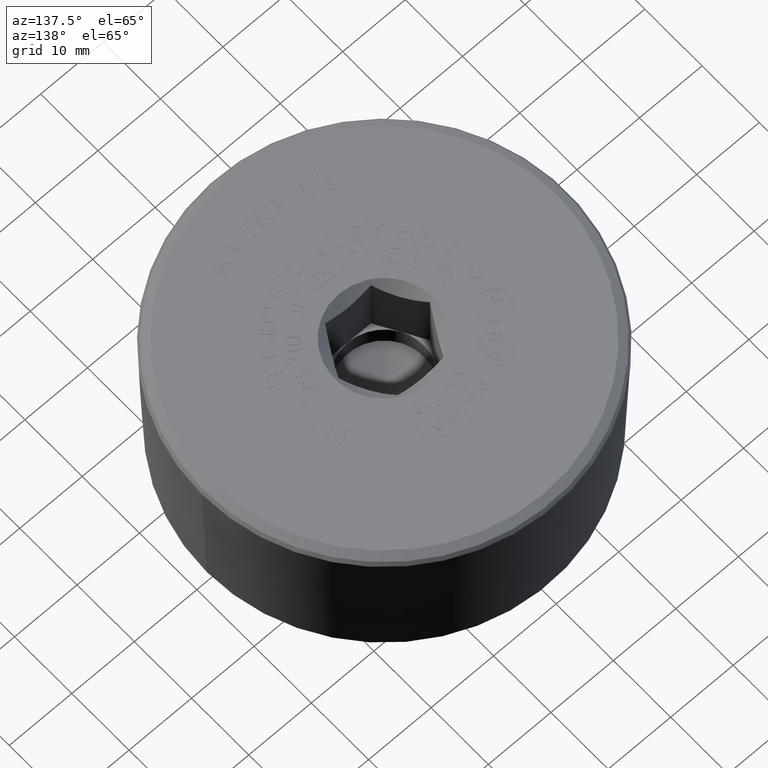
[diagram: clean part render]
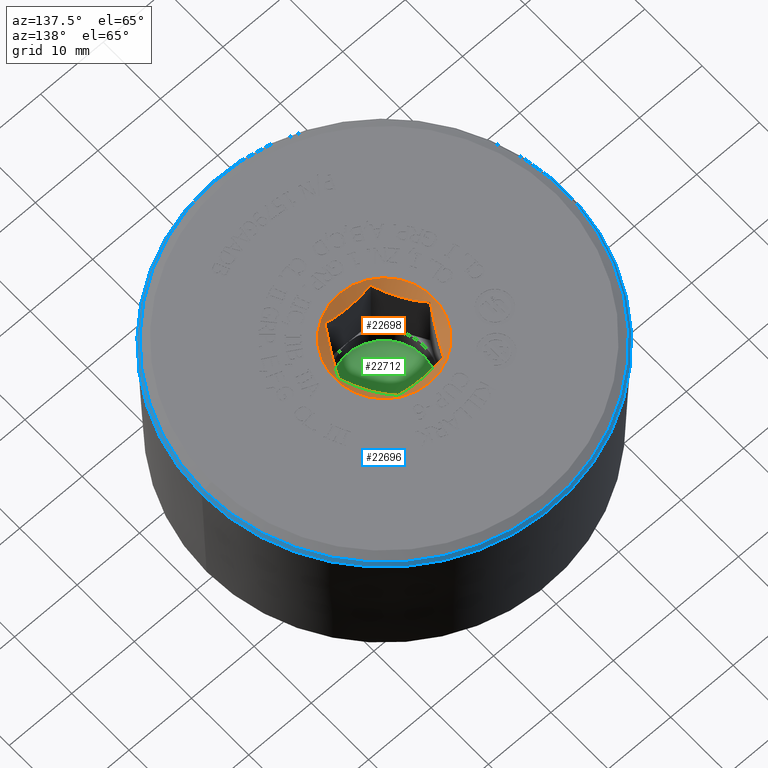
[diagram: same view with three faces highlighted in distinct colors, each labeled with its STEP entity id]
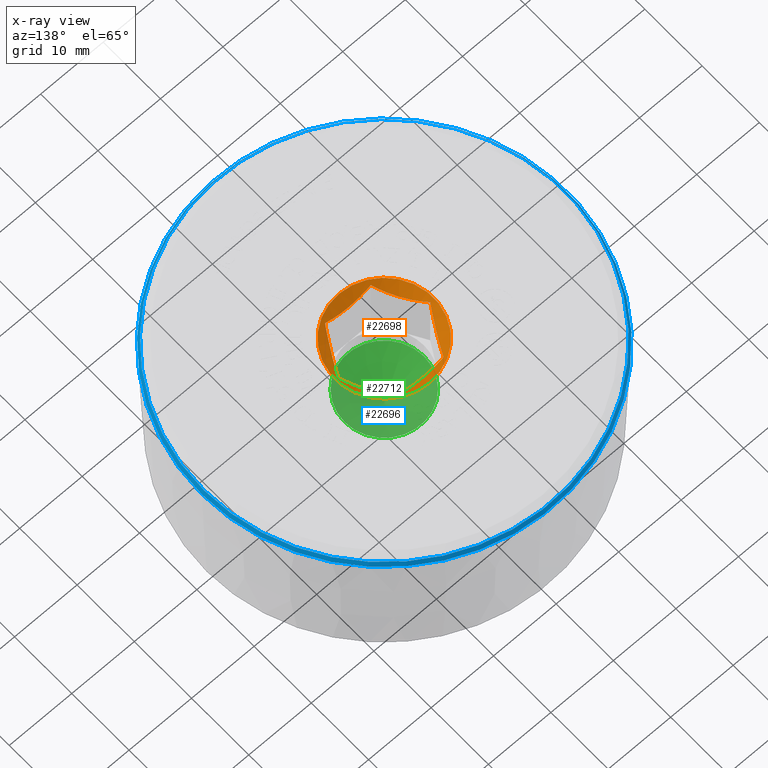
[diagram: x-ray of the same camera — body ghosted, the three highlighted faces saturated]
A machine part, auxiliary view with three faces highlighted in distinct colors.
The next image is the same camera in x-ray (body ghosted, the three faces saturated) — at least one of them is partly hidden behind the body in this view.
Their STEP definitions:

[orange] entity #22698 — the highlighted conical surface has half-angle 45 deg.
#15=(
BOUNDED_CURVE()
B_SPLINE_CURVE(2,(#39261,#39262,#39263),.UNSPECIFIED.,.F.,.F.)
B_SPLINE_CURVE_WITH_KNOTS((3,3),(0.088868229632263,0.890926687681743),
 .UNSPECIFIED.)
CURVE()
GEOMETRIC_REPRESENTATION_ITEM()
RATIONAL_B_SPLINE_CURVE((1.03958761790857,1.20041238209085,1.03958761790972))
REPRESENTATION_ITEM('')
);
#16=(
BOUNDED_CURVE()
B_SPLINE_CURVE(2,(#39265,#39266,#39267),.UNSPECIFIED.,.F.,.F.)
B_SPLINE_CURVE_WITH_KNOTS((3,3),(0.0888682296322625,0.890926687681743),
 .UNSPECIFIED.)
CURVE()
GEOMETRIC_REPRESENTATION_ITEM()
RATIONAL_B_SPLINE_CURVE((1.03958761790857,1.20041238209086,1.03958761790972))
REPRESENTATION_ITEM('')
);
#17=(
BOUNDED_CURVE()
B_SPLINE_CURVE(2,(#39269,#39270,#39271),.UNSPECIFIED.,.F.,.F.)
B_SPLINE_CURVE_WITH_KNOTS((3,3),(0.088868229632262,0.890926687681743),
 .UNSPECIFIED.)
CURVE()
GEOMETRIC_REPRESENTATION_ITEM()
RATIONAL_B_SPLINE_CURVE((1.03958761790857,1.20041238209086,1.03958761790972))
REPRESENTATION_ITEM('')
);
#18=(
BOUNDED_CURVE()
B_SPLINE_CURVE(2,(#39273,#39274,#39275),.UNSPECIFIED.,.F.,.F.)
B_SPLINE_CURVE_WITH_KNOTS((3,3),(0.0888682296322629,0.890926687681742),
 .UNSPECIFIED.)
CURVE()
GEOMETRIC_REPRESENTATION_ITEM()
RATIONAL_B_SPLINE_CURVE((1.03958761790857,1.20041238209085,1.03958761790972))
REPRESENTATION_ITEM('')
);
#19=(
BOUNDED_CURVE()
B_SPLINE_CURVE(2,(#39277,#39278,#39279),.UNSPECIFIED.,.F.,.F.)
B_SPLINE_CURVE_WITH_KNOTS((3,3),(0.489897458655694,0.890926687681744),
 .UNSPECIFIED.)
CURVE()
GEOMETRIC_REPRESENTATION_ITEM()
RATIONAL_B_SPLINE_CURVE((1.12,1.12000000000055,1.03958761790972))
REPRESENTATION_ITEM('')
);
#20=(
BOUNDED_CURVE()
B_SPLINE_CURVE(2,(#39282,#39283,#39284),.UNSPECIFIED.,.F.,.F.)
B_SPLINE_CURVE_WITH_KNOTS((3,3),(0.0888682296322634,0.489897458655694),
 .UNSPECIFIED.)
CURVE()
GEOMETRIC_REPRESENTATION_ITEM()
RATIONAL_B_SPLINE_CURVE((1.03958761790857,1.11999999999945,1.12))
REPRESENTATION_ITEM('')
);
#21=(
BOUNDED_CURVE()
B_SPLINE_CURVE(2,(#39285,#39286,#39287),.UNSPECIFIED.,.F.,.F.)
B_SPLINE_CURVE_WITH_KNOTS((3,3),(0.0888682296322631,0.890926687681743),
 .UNSPECIFIED.)
CURVE()
GEOMETRIC_REPRESENTATION_ITEM()
RATIONAL_B_SPLINE_CURVE((1.03958761790857,1.20041238209085,1.03958761790972))
REPRESENTATION_ITEM('')
);
#26=CONICAL_SURFACE('',#23596,0.2475,0.785398163397448);
#3270=FACE_OUTER_BOUND('',#4597,.T.);
#4597=EDGE_LOOP('',(#21407,#21408,#21409,#21410,#21411,#21412,#21413,#21414,
#21415,#21416,#21417));
#7037=LINE('',#39280,#9483);
#9483=VECTOR('',#27773,0.2475);
#9526=CIRCLE('',#22785,0.31);
#9527=CIRCLE('',#22786,0.31);
#10467=VERTEX_POINT('',#30573);
#10468=VERTEX_POINT('',#30574);
#11702=VERTEX_POINT('',#39259);
#11703=VERTEX_POINT('',#39260);
#11704=VERTEX_POINT('',#39264);
#11705=VERTEX_POINT('',#39268);
#11706=VERTEX_POINT('',#39272);
#11707=VERTEX_POINT('',#39276);
#11708=VERTEX_POINT('',#39281);
#12660=EDGE_CURVE('',#10467,#10468,#9526,.T.);
#12661=EDGE_CURVE('',#10468,#10467,#9527,.T.);
#14941=EDGE_CURVE('',#11702,#11703,#15,.T.);
#14942=EDGE_CURVE('',#11704,#11702,#16,.T.);
#14943=EDGE_CURVE('',#11705,#11704,#17,.T.);
#14944=EDGE_CURVE('',#11706,#11705,#18,.T.);
#14945=EDGE_CURVE('',#11707,#11706,#19,.T.);
#14946=EDGE_CURVE('',#11707,#10468,#7037,.T.);
#14947=EDGE_CURVE('',#11708,#11707,#20,.T.);
#14948=EDGE_CURVE('',#11703,#11708,#21,.T.);
#21407=ORIENTED_EDGE('',*,*,#14941,.F.);
#21408=ORIENTED_EDGE('',*,*,#14942,.F.);
#21409=ORIENTED_EDGE('',*,*,#14943,.F.);
#21410=ORIENTED_EDGE('',*,*,#14944,.F.);
#21411=ORIENTED_EDGE('',*,*,#14945,.F.);
#21412=ORIENTED_EDGE('',*,*,#14946,.T.);
#21413=ORIENTED_EDGE('',*,*,#12660,.F.);
#21414=ORIENTED_EDGE('',*,*,#12661,.F.);
#21415=ORIENTED_EDGE('',*,*,#14946,.F.);
#21416=ORIENTED_EDGE('',*,*,#14947,.F.);
#21417=ORIENTED_EDGE('',*,*,#14948,.F.);
#22698=ADVANCED_FACE('',(#3270),#26,.F.);
#22785=AXIS2_PLACEMENT_3D('',#30575,#24354,#24355);
#22786=AXIS2_PLACEMENT_3D('',#30576,#24356,#24357);
#23596=AXIS2_PLACEMENT_3D('',#39258,#27771,#27772);
#24354=DIRECTION('center_axis',(0.,0.,-1.));
#24355=DIRECTION('ref_axis',(0.,1.,0.));
#24356=DIRECTION('center_axis',(0.,0.,-1.));
#24357=DIRECTION('ref_axis',(0.,1.,0.));
#27771=DIRECTION('center_axis',(0.,0.,1.));
#27772=DIRECTION('ref_axis',(0.,1.,0.));
#27773=DIRECTION('',(8.65956056235493E-17,-0.707106781186547,0.707106781186547));
#30573=CARTESIAN_POINT('',(0.,0.31,1.));
#30574=CARTESIAN_POINT('',(3.79640507735679E-17,-0.31,1.));
#30575=CARTESIAN_POINT('Origin',(0.,0.,1.));
#30576=CARTESIAN_POINT('Origin',(0.,0.,1.));
#39258=CARTESIAN_POINT('Origin',(0.,0.,0.9375));
#39259=CARTESIAN_POINT('',(-0.144337567297406,0.25,0.978675134594813));
#39260=CARTESIAN_POINT('',(-0.288675134594813,-1.41163701247187E-17,0.978675134594813));
#39261=CARTESIAN_POINT('Ctrl Pts',(-0.144337567297406,0.25,0.978675134594813));
#39262=CARTESIAN_POINT('Ctrl Pts',(-0.216506350946483,0.124999999999353,
0.906506350946932));
#39263=CARTESIAN_POINT('Ctrl Pts',(-0.288675134594813,-1.41163701247187E-17,
0.978675134594813));
#39264=CARTESIAN_POINT('',(0.144337567297406,0.25,0.978675134594813));
#39265=CARTESIAN_POINT('Ctrl Pts',(0.144337567297406,0.25,0.978675134594813));
#39266=CARTESIAN_POINT('Ctrl Pts',(-7.47083934523353E-13,0.25,0.906506350946931));
#39267=CARTESIAN_POINT('Ctrl Pts',(-0.144337567297406,0.25,0.978675134594813));
#39268=CARTESIAN_POINT('',(0.288675134594813,6.30580822661731E-19,0.978675134594813));
#39269=CARTESIAN_POINT('Ctrl Pts',(0.288675134594813,6.30580822661731E-19,
0.978675134594813));
#39270=CARTESIAN_POINT('Ctrl Pts',(0.216506350945736,0.125000000000647,
0.906506350946931));
#39271=CARTESIAN_POINT('Ctrl Pts',(0.144337567297406,0.25,0.978675134594813));
#39272=CARTESIAN_POINT('',(0.144337567297406,-0.25,0.978675134594813));
#39273=CARTESIAN_POINT('Ctrl Pts',(0.144337567297406,-0.25,0.978675134594813));
#39274=CARTESIAN_POINT('Ctrl Pts',(0.216506350946483,-0.124999999999353,
0.906506350946932));
#39275=CARTESIAN_POINT('Ctrl Pts',(0.288675134594813,6.30580822661731E-19,
0.978675134594813));
#39276=CARTESIAN_POINT('',(2.26255349723712E-17,-0.25,0.940000000000459));
#39277=CARTESIAN_POINT('Ctrl Pts',(1.46348999660585E-17,-0.25,0.940000000000459));
#39278=CARTESIAN_POINT('Ctrl Pts',(0.0669872981080036,-0.25,0.940000000000352));
#39279=CARTESIAN_POINT('Ctrl Pts',(0.144337567297406,-0.25,0.978675134594813));
#39280=CARTESIAN_POINT('',(3.0310008278897E-17,-0.2475,0.9375));
#39281=CARTESIAN_POINT('',(-0.144337567297406,-0.25,0.978675134594813));
#39282=CARTESIAN_POINT('Ctrl Pts',(-0.144337567297406,-0.25,0.978675134594813));
#39283=CARTESIAN_POINT('Ctrl Pts',(-0.066987298107632,-0.25,0.940000000000566));
#39284=CARTESIAN_POINT('Ctrl Pts',(1.46348999660585E-17,-0.25,0.940000000000459));
#39285=CARTESIAN_POINT('Ctrl Pts',(-0.288675134594813,-1.41163701247187E-17,
0.978675134594813));
#39286=CARTESIAN_POINT('Ctrl Pts',(-0.216506350945736,-0.125000000000647,
0.906506350946931));
#39287=CARTESIAN_POINT('Ctrl Pts',(-0.144337567297406,-0.25,0.978675134594813));

[blue] entity #22696 — the highlighted conical surface has half-angle 30 deg.
#25=CONICAL_SURFACE('',#23593,1.13419941656286,0.523598775598302);
#3268=FACE_OUTER_BOUND('',#4595,.T.);
#4595=EDGE_LOOP('',(#21396,#21397,#21398,#21399));
#7036=LINE('',#39256,#9482);
#9482=VECTOR('',#27768,1.13419941656286);
#9547=CIRCLE('',#23592,1.13504841660413);
#9548=CIRCLE('',#23594,1.14897541652158);
#11700=VERTEX_POINT('',#39250);
#11701=VERTEX_POINT('',#39254);
#14937=EDGE_CURVE('',#11700,#11700,#9547,.T.);
#14939=EDGE_CURVE('',#11701,#11701,#9548,.T.);
#14940=EDGE_CURVE('',#11701,#11700,#7036,.T.);
#21396=ORIENTED_EDGE('',*,*,#14939,.T.);
#21397=ORIENTED_EDGE('',*,*,#14940,.T.);
#21398=ORIENTED_EDGE('',*,*,#14937,.F.);
#21399=ORIENTED_EDGE('',*,*,#14940,.F.);
#22696=ADVANCED_FACE('',(#3268),#25,.T.);
#23592=AXIS2_PLACEMENT_3D('',#39251,#27761,#27762);
#23593=AXIS2_PLACEMENT_3D('',#39253,#27764,#27765);
#23594=AXIS2_PLACEMENT_3D('',#39255,#27766,#27767);
#27761=DIRECTION('center_axis',(-1.39636578993076E-32,-4.62107877611772E-16,
1.));
#27762=DIRECTION('ref_axis',(-1.,3.0217311965062E-17,0.));
#27764=DIRECTION('center_axis',(0.,1.37449792464193E-15,-1.));
#27765=DIRECTION('ref_axis',(-1.,-3.10150279923056E-17,0.));
#27766=DIRECTION('center_axis',(0.,0.,1.));
#27767=DIRECTION('ref_axis',(-1.,-6.12323399573676E-17,0.));
#27768=DIRECTION('',(-0.500000000000003,-1.14462529422769E-15,0.866025403784437));
#39250=CARTESIAN_POINT('',(1.13504841660413,7.24019996695028E-17,0.972936706131736));
#39251=CARTESIAN_POINT('Origin',(0.,-3.23032292576727E-17,0.972936706131736));
#39253=CARTESIAN_POINT('Origin',(0.,3.51772266535537E-17,0.974407217338857));
#39254=CARTESIAN_POINT('',(1.14897541652158,2.8141781322843E-16,0.948814434677713));
#39255=CARTESIAN_POINT('Origin',(0.,7.03544533071074E-17,0.948814434677713));
#39256=CARTESIAN_POINT('',(1.13419941656286,-6.85449152017423E-17,0.974407217338857));

[green] entity #22712 — the highlighted conical surface has half-angle 59 deg.
#28=CONICAL_SURFACE('',#23617,0.125,1.02974425867665);
#3284=FACE_OUTER_BOUND('',#4611,.T.);
#4611=EDGE_LOOP('',(#21472,#21473,#21474,#21475));
#7057=LINE('',#39345,#9503);
#9503=VECTOR('',#27837,0.125);
#9556=CIRCLE('',#23618,0.25);
#9557=CIRCLE('',#23619,0.25);
#11722=VERTEX_POINT('',#39341);
#11723=VERTEX_POINT('',#39342);
#11724=VERTEX_POINT('',#39344);
#14975=EDGE_CURVE('',#11722,#11723,#9556,.T.);
#14976=EDGE_CURVE('',#11723,#11724,#7057,.T.);
#14977=EDGE_CURVE('',#11723,#11722,#9557,.T.);
#21472=ORIENTED_EDGE('',*,*,#14975,.T.);
#21473=ORIENTED_EDGE('',*,*,#14976,.T.);
#21474=ORIENTED_EDGE('',*,*,#14976,.F.);
#21475=ORIENTED_EDGE('',*,*,#14977,.T.);
#22712=ADVANCED_FACE('',(#3284),#28,.F.);
#23617=AXIS2_PLACEMENT_3D('',#39340,#27833,#27834);
#23618=AXIS2_PLACEMENT_3D('',#39343,#27835,#27836);
#23619=AXIS2_PLACEMENT_3D('',#39346,#27838,#27839);
#27833=DIRECTION('center_axis',(0.,0.,1.));
#27834=DIRECTION('ref_axis',(1.,0.,0.));
#27835=DIRECTION('center_axis',(0.,0.,1.));
#27836=DIRECTION('ref_axis',(1.,0.,0.));
#27837=DIRECTION('',(0.857167300702112,1.04972719113862E-16,-0.515038074910054));
#27838=DIRECTION('center_axis',(0.,0.,1.));
#27839=DIRECTION('ref_axis',(1.,0.,0.));
#39340=CARTESIAN_POINT('Origin',(0.,0.,0.364892422621555));
#39341=CARTESIAN_POINT('',(0.25,0.,0.44));
#39342=CARTESIAN_POINT('',(-0.25,-3.06161699786838E-17,0.44));
#39343=CARTESIAN_POINT('Origin',(0.,0.,0.44));
#39344=CARTESIAN_POINT('',(0.,0.,0.28978484524311));
#39345=CARTESIAN_POINT('',(-0.125,-1.53080849893419E-17,0.364892422621555));
#39346=CARTESIAN_POINT('Origin',(0.,0.,0.44));